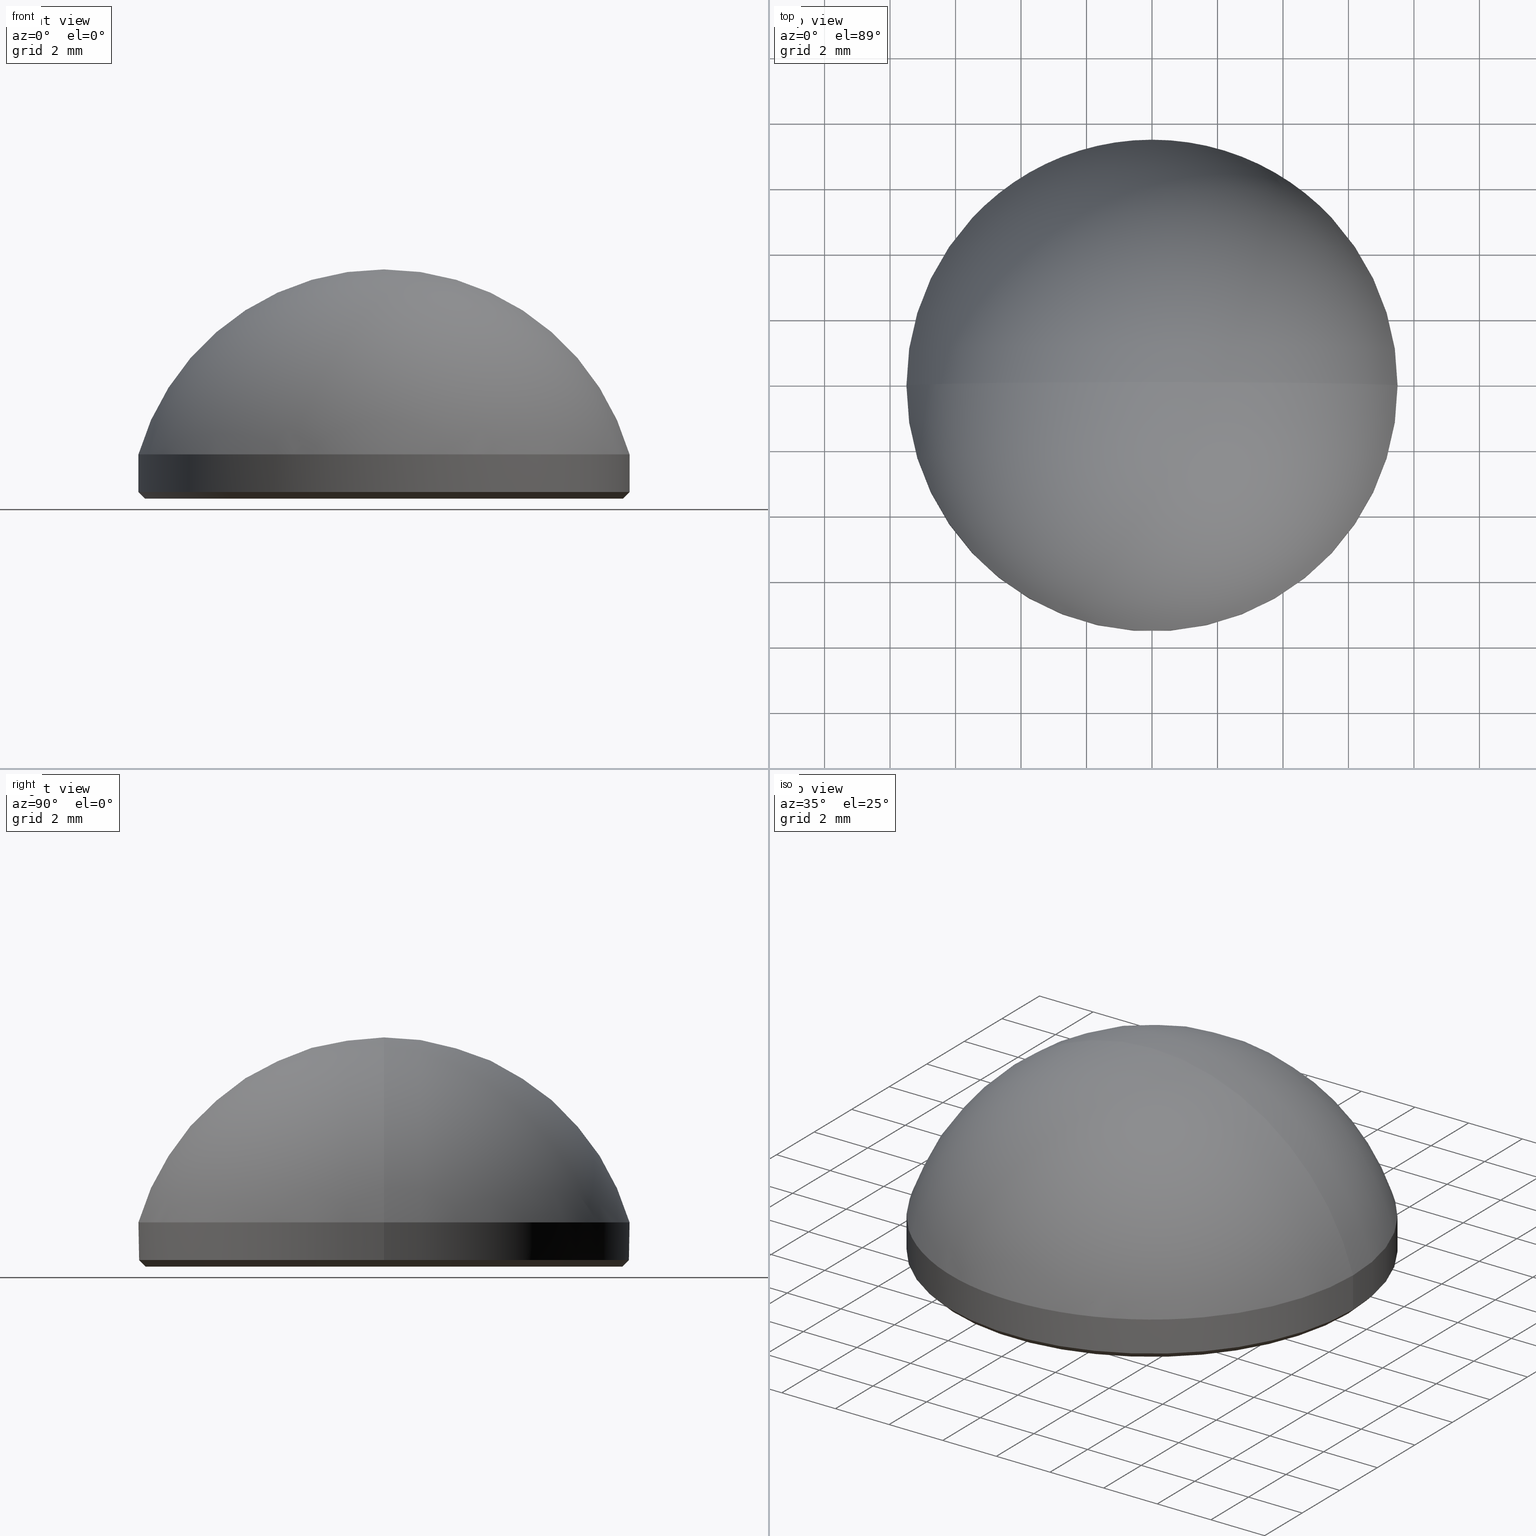
[diagram: canonical four-view strip — front | top / right | iso, engineering-drawing reading convention]
A machine part, canonical four-view strip (front | top / right | iso — engineering-drawing reading convention). The complete STEP part file that produces these views, byte-faithful:
ISO-10303-21;
HEADER;
FILE_DESCRIPTION (( 'STEP AP214' ),
    '1' );
FILE_NAME ('GLA11-015-9-VIS.STEP',
    '2024-08-09T08:22:44',
    ( 'Windows User' ),
    ( 'P R C' ),
    'SwSTEP 2.0',
    'SolidWorks 2022',
    '' );
FILE_SCHEMA (( 'AUTOMOTIVE_DESIGN' ));
ENDSEC;

DATA;
#1 = VERTEX_POINT ( 'NONE', #115 ) ;
#2 = SURFACE_SIDE_STYLE ('',( #5 ) ) ;
#3 = DIRECTION ( 'NONE',  ( -0.000000000000000000, -0.000000000000000000, -1.000000000000000000 ) ) ;
#4 = PRODUCT_DEFINITION ( 'δ֪', '', #83, #116 ) ;
#5 = SURFACE_STYLE_FILL_AREA ( #190 ) ;
#6 = DIRECTION ( 'NONE',  ( -0.000000000000000000, -0.000000000000000000, 1.000000000000000000 ) ) ;
#7 =( GEOMETRIC_REPRESENTATION_CONTEXT ( 3 ) GLOBAL_UNCERTAINTY_ASSIGNED_CONTEXT ( ( #142 ) ) GLOBAL_UNIT_ASSIGNED_CONTEXT ( ( #48, #30, #143 ) ) REPRESENTATION_CONTEXT ( 'NONE', 'WORKASPACE' ) );
#8 = EDGE_CURVE ( 'NONE', #146, #126, #186, .T. ) ;
#9 = DIRECTION ( 'NONE',  ( 0.000000000000000000, 1.000000000000000000, 0.000000000000000000 ) ) ;
#10 = CARTESIAN_POINT ( 'NONE',  ( 0.000000000000000000, 0.000000000000000000, 0.000000000000000000 ) ) ;
#11 = VECTOR ( 'NONE', #81, 1000.000000000000000 ) ;
#12 = ORIENTED_EDGE ( 'NONE', *, *, #106, .T. ) ;
#13 = DIRECTION ( 'NONE',  ( 1.000000000000000000, 0.000000000000000000, 0.000000000000000000 ) ) ;
#14 = ADVANCED_FACE ( 'NONE', ( #134 ), #31, .T. ) ;
#15 = VECTOR ( 'NONE', #3, 1000.000000000000000 ) ;
#16 = DIRECTION ( 'NONE',  ( 0.000000000000000000, 0.000000000000000000, 1.000000000000000000 ) ) ;
#17 = ORIENTED_EDGE ( 'NONE', *, *, #106, .F. ) ;
#18 = FILL_AREA_STYLE_COLOUR ( '', #207 ) ;
#19 = CARTESIAN_POINT ( 'NONE',  ( 0.000000000000000000, 0.000000000000000000, 0.2000000000000065892 ) ) ;
#20 = AXIS2_PLACEMENT_3D ( 'NONE', #172, #59, #23 ) ;
#21 = DIRECTION ( 'NONE',  ( 0.000000000000000000, 0.000000000000000000, 1.000000000000000000 ) ) ;
#22 = PLANE ( 'NONE',  #124 ) ;
#23 = DIRECTION ( 'NONE',  ( -1.000000000000000000, 0.000000000000000000, 0.000000000000000000 ) ) ;
#24 = EDGE_CURVE ( 'NONE', #126, #114, #139, .T. ) ;
#25 = FACE_OUTER_BOUND ( 'NONE', #32, .T. ) ;
#26 = EDGE_CURVE ( 'NONE', #47, #126, #171, .T. ) ;
#27 = UNCERTAINTY_MEASURE_WITH_UNIT (LENGTH_MEASURE( 1.000000000000000082E-05 ), #173, 'distance_accuracy_value', 'NONE');
#28 = STYLED_ITEM ( 'NONE', ( #135 ), #145 ) ;
#29 = DIRECTION ( 'NONE',  ( -0.000000000000000000, -1.000000000000000000, 0.000000000000000000 ) ) ;
#30 =( NAMED_UNIT ( * ) PLANE_ANGLE_UNIT ( ) SI_UNIT ( $, .RADIAN. ) );
#31 = CONICAL_SURFACE ( 'NONE', #189, 7.500000000000000888, 0.7853981633974461696 ) ;
#32 = EDGE_LOOP ( 'NONE', ( #195, #12, #203 ) ) ;
#33 = FILL_AREA_STYLE_COLOUR ( '', #52 ) ;
#34 = EDGE_CURVE ( 'NONE', #79, #114, #150, .T. ) ;
#35 = ORIENTED_EDGE ( 'NONE', *, *, #94, .F. ) ;
#36 = STYLED_ITEM ( 'NONE', ( #161 ), #46 ) ;
#37 = ORIENTED_EDGE ( 'NONE', *, *, #60, .T. ) ;
#38 = DIRECTION ( 'NONE',  ( -0.000000000000000000, -0.000000000000000000, 1.000000000000000000 ) ) ;
#39 = FACE_OUTER_BOUND ( 'NONE', #215, .T. ) ;
#40 = CLOSED_SHELL ( 'NONE', ( #132, #152, #192, #177, #72, #157, #14 ) ) ;
#41 = FACE_OUTER_BOUND ( 'NONE', #211, .T. ) ;
#42 = DIRECTION ( 'NONE',  ( -0.000000000000000000, -0.000000000000000000, -1.000000000000000000 ) ) ;
#43 = CIRCLE ( 'NONE', #68, 7.802876106194690742 ) ;
#44 = ORIENTED_EDGE ( 'NONE', *, *, #204, .T. ) ;
#45 = DIRECTION ( 'NONE',  ( -1.000000000000000000, 0.000000000000000000, 0.000000000000000000 ) ) ;
#46 = ADVANCED_BREP_SHAPE_REPRESENTATION ( 'GLA11-015-9-VIS', ( #145, #162 ), #7 ) ;
#47 = VERTEX_POINT ( 'NONE', #70 ) ;
#48 =( LENGTH_UNIT ( ) NAMED_UNIT ( * ) SI_UNIT ( .MILLI., .METRE. ) );
#49 = CARTESIAN_POINT ( 'NONE',  ( 0.000000000000000000, 0.000000000000000000, 0.000000000000000000 ) ) ;
#50 = APPLICATION_CONTEXT ( 'automotive_design' ) ;
#51 = CARTESIAN_POINT ( 'NONE',  ( -4.336808689942017736E-16, 0.000000000000000000, -0.8028761061946902977 ) ) ;
#52 = COLOUR_RGB ( '',1.000000000000000000, 1.000000000000000000, 1.000000000000000000 ) ;
#53 = DIRECTION ( 'NONE',  ( 1.000000000000000000, -1.224646799147353207E-16, 0.000000000000000000 ) ) ;
#54 = EDGE_LOOP ( 'NONE', ( #178, #110, #91, #196 ) ) ;
#55 = CARTESIAN_POINT ( 'NONE',  ( 0.000000000000000000, 0.000000000000000000, 0.000000000000000000 ) ) ;
#56 = DIRECTION ( 'NONE',  ( -0.000000000000000000, -0.000000000000000000, 1.000000000000000000 ) ) ;
#57 =( NAMED_UNIT ( * ) SI_UNIT ( $, .STERADIAN. ) SOLID_ANGLE_UNIT ( ) );
#58 = CIRCLE ( 'NONE', #101, 7.500000000000000888 ) ;
#59 = DIRECTION ( 'NONE',  ( -0.000000000000000000, -1.000000000000000000, 0.000000000000000000 ) ) ;
#60 = EDGE_CURVE ( 'NONE', #114, #126, #180, .T. ) ;
#61 = CARTESIAN_POINT ( 'NONE',  ( -4.336808689942017736E-16, 0.000000000000000000, -0.8028761061946902977 ) ) ;
#62 = EDGE_LOOP ( 'NONE', ( #66, #159, #200, #37 ) ) ;
#63 = CYLINDRICAL_SURFACE ( 'NONE', #160, 7.500000000000000888 ) ;
#64 = ORIENTED_EDGE ( 'NONE', *, *, #60, .F. ) ;
#65 = DIRECTION ( 'NONE',  ( -1.224646799147353207E-16, -1.000000000000000000, -0.000000000000000000 ) ) ;
#66 = ORIENTED_EDGE ( 'NONE', *, *, #26, .F. ) ;
#67 = DIRECTION ( 'NONE',  ( 0.000000000000000000, 0.000000000000000000, 1.000000000000000000 ) ) ;
#68 = AXIS2_PLACEMENT_3D ( 'NONE', #61, #65, #53 ) ;
#69 = ORIENTED_EDGE ( 'NONE', *, *, #82, .F. ) ;
#70 = CARTESIAN_POINT ( 'NONE',  ( 7.500000000000000888, 9.184850993605147944E-16, 1.350000000000000089 ) ) ;
#71 = DIRECTION ( 'NONE',  ( 1.000000000000000000, 0.000000000000000000, 0.000000000000000000 ) ) ;
#72 = ADVANCED_FACE ( 'NONE', ( #39 ), #22, .F. ) ;
#73 = CIRCLE ( 'NONE', #155, 7.299999999999994493 ) ;
#74 = DIRECTION ( 'NONE',  ( -0.000000000000000000, -0.000000000000000000, -1.000000000000000000 ) ) ;
#75 = MECHANICAL_DESIGN_GEOMETRIC_PRESENTATION_REPRESENTATION (  '', ( #36 ), #131 ) ;
#76 = APPLICATION_PROTOCOL_DEFINITION ( 'draft international standard', 'automotive_design', 1998, #50 ) ;
#77 = EDGE_CURVE ( 'NONE', #79, #47, #58, .T. ) ;
#78 = CARTESIAN_POINT ( 'NONE',  ( -7.500000000000000888, 0.000000000000000000, 1.350000000000000089 ) ) ;
#79 = VERTEX_POINT ( 'NONE', #201 ) ;
#80 = AXIS2_PLACEMENT_3D ( 'NONE', #51, #9, #149 ) ;
#81 = DIRECTION ( 'NONE',  ( -0.000000000000000000, -0.000000000000000000, -1.000000000000000000 ) ) ;
#82 = EDGE_CURVE ( 'NONE', #79, #1, #214, .T. ) ;
#83 = PRODUCT_DEFINITION_FORMATION_WITH_SPECIFIED_SOURCE ( '�κ�', '', #164, .NOT_KNOWN. ) ;
#84 = CARTESIAN_POINT ( 'NONE',  ( -7.500000000000000888, 0.000000000000000000, 0.2000000000000065892 ) ) ;
#85 = SURFACE_STYLE_USAGE ( .BOTH. , #2 ) ;
#86 = FACE_OUTER_BOUND ( 'NONE', #62, .T. ) ;
#87 = AXIS2_PLACEMENT_3D ( 'NONE', #136, #118, #188 ) ;
#88 =( LENGTH_UNIT ( ) NAMED_UNIT ( * ) SI_UNIT ( .MILLI., .METRE. ) );
#89 = ORIENTED_EDGE ( 'NONE', *, *, #26, .T. ) ;
#90 = FILL_AREA_STYLE ('',( #33 ) ) ;
#91 = ORIENTED_EDGE ( 'NONE', *, *, #24, .F. ) ;
#92 = SURFACE_STYLE_USAGE ( .BOTH. , #212 ) ;
#93 =( NAMED_UNIT ( * ) PLANE_ANGLE_UNIT ( ) SI_UNIT ( $, .RADIAN. ) );
#94 = EDGE_CURVE ( 'NONE', #146, #97, #138, .T. ) ;
#95 = AXIS2_PLACEMENT_3D ( 'NONE', #168, #29, #108 ) ;
#96 = CARTESIAN_POINT ( 'NONE',  ( 0.000000000000000000, 0.000000000000000000, 1.350000000000000089 ) ) ;
#97 = VERTEX_POINT ( 'NONE', #120 ) ;
#98 = SPHERICAL_SURFACE ( 'NONE', #95, 7.802876106194690742 ) ;
#99 = DIRECTION ( 'NONE',  ( 1.000000000000000000, 0.000000000000000000, 0.000000000000000000 ) ) ;
#100 = LINE ( 'NONE', #104, #119 ) ;
#101 = AXIS2_PLACEMENT_3D ( 'NONE', #96, #67, #129 ) ;
#102 = CARTESIAN_POINT ( 'NONE',  ( 7.500000000000000888, 9.184850993605147944E-16, 1.350000000000000089 ) ) ;
#103 = SPHERICAL_SURFACE ( 'NONE', #20, 7.802876106194690742 ) ;
#104 = CARTESIAN_POINT ( 'NONE',  ( -7.500000000000000888, 9.184850993605149917E-16, 0.2000000000000065892 ) ) ;
#105 = APPLICATION_CONTEXT ( 'automotive_design' ) ;
#106 = EDGE_CURVE ( 'NONE', #47, #79, #165, .T. ) ;
#107 = ORIENTED_EDGE ( 'NONE', *, *, #24, .T. ) ;
#108 = DIRECTION ( 'NONE',  ( -1.000000000000000000, 0.000000000000000000, 0.000000000000000000 ) ) ;
#109 = FACE_OUTER_BOUND ( 'NONE', #179, .T. ) ;
#110 = ORIENTED_EDGE ( 'NONE', *, *, #140, .T. ) ;
#111 =( GEOMETRIC_REPRESENTATION_CONTEXT ( 3 ) GLOBAL_UNCERTAINTY_ASSIGNED_CONTEXT ( ( #27 ) ) GLOBAL_UNIT_ASSIGNED_CONTEXT ( ( #173, #206, #57 ) ) REPRESENTATION_CONTEXT ( 'NONE', 'WORKASPACE' ) );
#112 = CYLINDRICAL_SURFACE ( 'NONE', #193, 7.500000000000000888 ) ;
#113 = DIRECTION ( 'NONE',  ( 1.000000000000000000, 0.000000000000000000, -0.000000000000000000 ) ) ;
#114 = VERTEX_POINT ( 'NONE', #84 ) ;
#115 = CARTESIAN_POINT ( 'NONE',  ( -9.114692313739364955E-16, 0.000000000000000000, 7.000000000000000000 ) ) ;
#116 = PRODUCT_DEFINITION_CONTEXT ( 'detailed design', #105, 'design' ) ;
#117 = FACE_OUTER_BOUND ( 'NONE', #54, .T. ) ;
#118 = DIRECTION ( 'NONE',  ( -0.000000000000000000, -0.000000000000000000, 1.000000000000000000 ) ) ;
#119 = VECTOR ( 'NONE', #151, 1000.000000000000227 ) ;
#120 = CARTESIAN_POINT ( 'NONE',  ( -7.299999999999994493, 9.062386313690410430E-16, 0.000000000000000000 ) ) ;
#121 = VECTOR ( 'NONE', #147, 1000.000000000000227 ) ;
#122 = ORIENTED_EDGE ( 'NONE', *, *, #77, .T. ) ;
#123 = DIRECTION ( 'NONE',  ( -0.000000000000000000, -0.000000000000000000, -1.000000000000000000 ) ) ;
#124 = AXIS2_PLACEMENT_3D ( 'NONE', #49, #16, #113 ) ;
#125 = CARTESIAN_POINT ( 'NONE',  ( 0.000000000000000000, 0.000000000000000000, 1.350000000000000089 ) ) ;
#126 = VERTEX_POINT ( 'NONE', #208 ) ;
#127 = PRODUCT_DEFINITION_SHAPE ( 'NONE', 'NONE',  #4 ) ;
#128 = CARTESIAN_POINT ( 'NONE',  ( 0.000000000000000000, 0.000000000000000000, 0.2000000000000065892 ) ) ;
#129 = DIRECTION ( 'NONE',  ( 1.000000000000000000, 0.000000000000000000, 0.000000000000000000 ) ) ;
#130 = PRESENTATION_LAYER_ASSIGNMENT (  '', '', ( #28 ) ) ;
#131 =( GEOMETRIC_REPRESENTATION_CONTEXT ( 3 ) GLOBAL_UNCERTAINTY_ASSIGNED_CONTEXT ( ( #175 ) ) GLOBAL_UNIT_ASSIGNED_CONTEXT ( ( #88, #93, #158 ) ) REPRESENTATION_CONTEXT ( 'NONE', 'WORKASPACE' ) );
#132 = ADVANCED_FACE ( 'NONE', ( #117 ), #198, .T. ) ;
#133 = PRODUCT_CONTEXT ( 'NONE', #50, 'mechanical' ) ;
#134 = FACE_OUTER_BOUND ( 'NONE', #167, .T. ) ;
#135 = PRESENTATION_STYLE_ASSIGNMENT (( #85 ) ) ;
#136 = CARTESIAN_POINT ( 'NONE',  ( 0.000000000000000000, 0.000000000000000000, 0.2000000000000065892 ) ) ;
#137 = CARTESIAN_POINT ( 'NONE',  ( 0.000000000000000000, 0.000000000000000000, 0.2000000000000065892 ) ) ;
#138 = CIRCLE ( 'NONE', #170, 7.299999999999994493 ) ;
#139 = CIRCLE ( 'NONE', #148, 7.500000000000000888 ) ;
#140 = EDGE_CURVE ( 'NONE', #97, #114, #100, .T. ) ;
#141 = ORIENTED_EDGE ( 'NONE', *, *, #140, .F. ) ;
#142 = UNCERTAINTY_MEASURE_WITH_UNIT (LENGTH_MEASURE( 1.000000000000000082E-05 ), #48, 'distance_accuracy_value', 'NONE');
#143 =( NAMED_UNIT ( * ) SI_UNIT ( $, .STERADIAN. ) SOLID_ANGLE_UNIT ( ) );
#144 = MECHANICAL_DESIGN_GEOMETRIC_PRESENTATION_REPRESENTATION (  '', ( #28 ), #111 ) ;
#145 = MANIFOLD_SOLID_BREP ( '����1', #40 ) ;
#146 = VERTEX_POINT ( 'NONE', #187 ) ;
#147 = DIRECTION ( 'NONE',  ( 0.7071067811865460184, 0.000000000000000000, 0.7071067811865490160 ) ) ;
#148 = AXIS2_PLACEMENT_3D ( 'NONE', #19, #56, #169 ) ;
#149 = DIRECTION ( 'NONE',  ( 0.000000000000000000, 0.000000000000000000, 1.000000000000000000 ) ) ;
#150 = LINE ( 'NONE', #78, #15 ) ;
#151 = DIRECTION ( 'NONE',  ( -0.7071067811865460184, 8.659560562354913137E-17, 0.7071067811865490160 ) ) ;
#152 = ADVANCED_FACE ( 'NONE', ( #41 ), #103, .T. ) ;
#153 = DIRECTION ( 'NONE',  ( 1.000000000000000000, 0.000000000000000000, 0.000000000000000000 ) ) ;
#154 = CARTESIAN_POINT ( 'NONE',  ( 0.000000000000000000, 0.000000000000000000, 1.350000000000000089 ) ) ;
#155 = AXIS2_PLACEMENT_3D ( 'NONE', #194, #74, #197 ) ;
#156 = CARTESIAN_POINT ( 'NONE',  ( 0.000000000000000000, 0.000000000000000000, 1.350000000000000089 ) ) ;
#157 = ADVANCED_FACE ( 'NONE', ( #25 ), #98, .T. ) ;
#158 =( NAMED_UNIT ( * ) SI_UNIT ( $, .STERADIAN. ) SOLID_ANGLE_UNIT ( ) );
#159 = ORIENTED_EDGE ( 'NONE', *, *, #77, .F. ) ;
#160 = AXIS2_PLACEMENT_3D ( 'NONE', #125, #213, #45 ) ;
#161 = PRESENTATION_STYLE_ASSIGNMENT (( #92 ) ) ;
#162 = AXIS2_PLACEMENT_3D ( 'NONE', #10, #199, #13 ) ;
#163 = DIRECTION ( 'NONE',  ( -1.000000000000000000, 0.000000000000000000, 0.000000000000000000 ) ) ;
#164 = PRODUCT ( 'GLA11-015-9-VIS', 'GLA11-015-9-VIS', '', ( #133 ) ) ;
#165 = CIRCLE ( 'NONE', #209, 7.500000000000000888 ) ;
#166 = ORIENTED_EDGE ( 'NONE', *, *, #8, .T. ) ;
#167 = EDGE_LOOP ( 'NONE', ( #141, #35, #166, #64 ) ) ;
#168 = CARTESIAN_POINT ( 'NONE',  ( -4.336808689942017736E-16, 0.000000000000000000, -0.8028761061946902977 ) ) ;
#169 = DIRECTION ( 'NONE',  ( 1.000000000000000000, 0.000000000000000000, 0.000000000000000000 ) ) ;
#170 = AXIS2_PLACEMENT_3D ( 'NONE', #55, #42, #191 ) ;
#171 = LINE ( 'NONE', #102, #11 ) ;
#172 = CARTESIAN_POINT ( 'NONE',  ( -4.336808689942017736E-16, 0.000000000000000000, -0.8028761061946902977 ) ) ;
#173 =( LENGTH_UNIT ( ) NAMED_UNIT ( * ) SI_UNIT ( .MILLI., .METRE. ) );
#174 = PRESENTATION_LAYER_ASSIGNMENT (  '', '', ( #36 ) ) ;
#175 = UNCERTAINTY_MEASURE_WITH_UNIT (LENGTH_MEASURE( 1.000000000000000082E-05 ), #88, 'distance_accuracy_value', 'NONE');
#176 = AXIS2_PLACEMENT_3D ( 'NONE', #137, #6, #71 ) ;
#177 = ADVANCED_FACE ( 'NONE', ( #86 ), #63, .T. ) ;
#178 = ORIENTED_EDGE ( 'NONE', *, *, #204, .F. ) ;
#179 = EDGE_LOOP ( 'NONE', ( #17, #89, #107, #185 ) ) ;
#180 = CIRCLE ( 'NONE', #87, 7.500000000000000888 ) ;
#181 = EDGE_CURVE ( 'NONE', #47, #1, #43, .T. ) ;
#182 = SURFACE_STYLE_FILL_AREA ( #90 ) ;
#183 = PRODUCT_RELATED_PRODUCT_CATEGORY ( 'part', '', ( #164 ) ) ;
#184 = ORIENTED_EDGE ( 'NONE', *, *, #94, .T. ) ;
#185 = ORIENTED_EDGE ( 'NONE', *, *, #34, .F. ) ;
#186 = LINE ( 'NONE', #205, #121 ) ;
#187 = CARTESIAN_POINT ( 'NONE',  ( 7.299999999999994493, 0.000000000000000000, 0.000000000000000000 ) ) ;
#188 = DIRECTION ( 'NONE',  ( 1.000000000000000000, 0.000000000000000000, 0.000000000000000000 ) ) ;
#189 = AXIS2_PLACEMENT_3D ( 'NONE', #128, #38, #99 ) ;
#190 = FILL_AREA_STYLE ('',( #18 ) ) ;
#191 = DIRECTION ( 'NONE',  ( 1.000000000000000000, 0.000000000000000000, 0.000000000000000000 ) ) ;
#192 = ADVANCED_FACE ( 'NONE', ( #109 ), #112, .T. ) ;
#193 = AXIS2_PLACEMENT_3D ( 'NONE', #156, #123, #163 ) ;
#194 = CARTESIAN_POINT ( 'NONE',  ( 0.000000000000000000, 0.000000000000000000, 0.000000000000000000 ) ) ;
#195 = ORIENTED_EDGE ( 'NONE', *, *, #181, .F. ) ;
#196 = ORIENTED_EDGE ( 'NONE', *, *, #8, .F. ) ;
#197 = DIRECTION ( 'NONE',  ( 1.000000000000000000, 0.000000000000000000, 0.000000000000000000 ) ) ;
#198 = CONICAL_SURFACE ( 'NONE', #176, 7.500000000000000888, 0.7853981633974461696 ) ;
#199 = DIRECTION ( 'NONE',  ( 0.000000000000000000, 0.000000000000000000, 1.000000000000000000 ) ) ;
#200 = ORIENTED_EDGE ( 'NONE', *, *, #34, .T. ) ;
#201 = CARTESIAN_POINT ( 'NONE',  ( -7.500000000000000888, 0.000000000000000000, 1.350000000000000089 ) ) ;
#202 = SHAPE_DEFINITION_REPRESENTATION ( #127, #46 ) ;
#203 = ORIENTED_EDGE ( 'NONE', *, *, #82, .T. ) ;
#204 = EDGE_CURVE ( 'NONE', #97, #146, #73, .T. ) ;
#205 = CARTESIAN_POINT ( 'NONE',  ( 7.500000000000000888, 0.000000000000000000, 0.2000000000000065892 ) ) ;
#206 =( NAMED_UNIT ( * ) PLANE_ANGLE_UNIT ( ) SI_UNIT ( $, .RADIAN. ) );
#207 = COLOUR_RGB ( '',1.000000000000000000, 1.000000000000000000, 1.000000000000000000 ) ;
#208 = CARTESIAN_POINT ( 'NONE',  ( 7.500000000000000888, 9.184850993605147944E-16, 0.2000000000000065892 ) ) ;
#209 = AXIS2_PLACEMENT_3D ( 'NONE', #154, #21, #153 ) ;
#210 = APPLICATION_PROTOCOL_DEFINITION ( 'draft international standard', 'automotive_design', 1998, #105 ) ;
#211 = EDGE_LOOP ( 'NONE', ( #122, #216, #69 ) ) ;
#212 = SURFACE_SIDE_STYLE ('',( #182 ) ) ;
#213 = DIRECTION ( 'NONE',  ( -0.000000000000000000, -0.000000000000000000, -1.000000000000000000 ) ) ;
#214 = CIRCLE ( 'NONE', #80, 7.802876106194690742 ) ;
#215 = EDGE_LOOP ( 'NONE', ( #184, #44 ) ) ;
#216 = ORIENTED_EDGE ( 'NONE', *, *, #181, .T. ) ;
ENDSEC;
END-ISO-10303-21;
